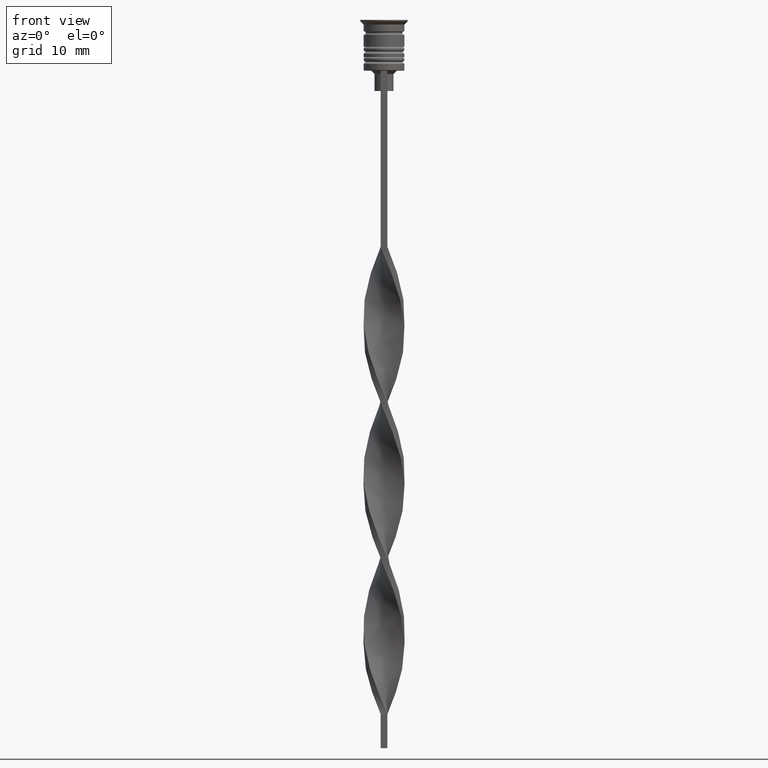
[diagram: clean part render]
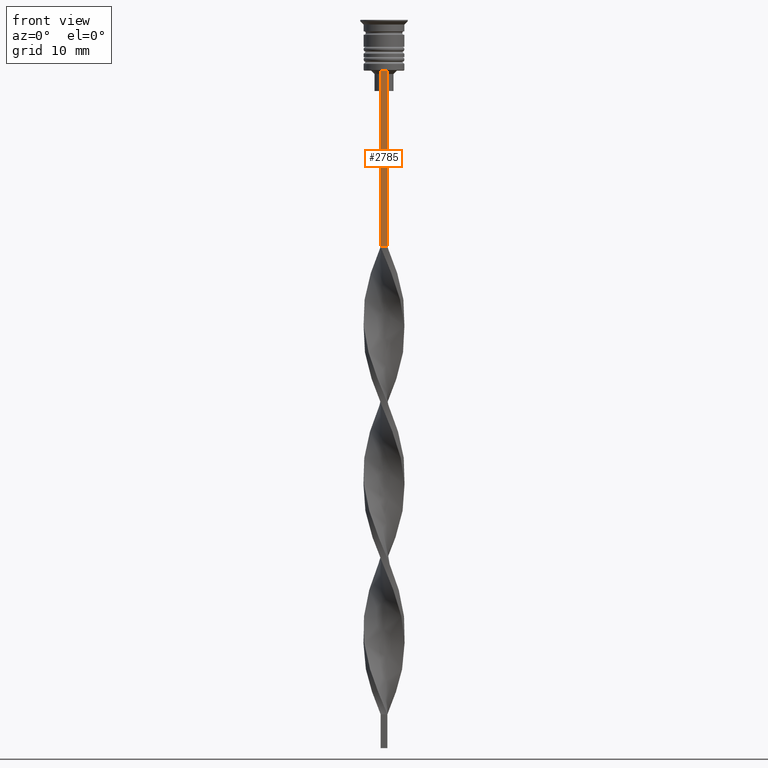
[diagram: same view with one face highlighted and labeled with its STEP entity id]
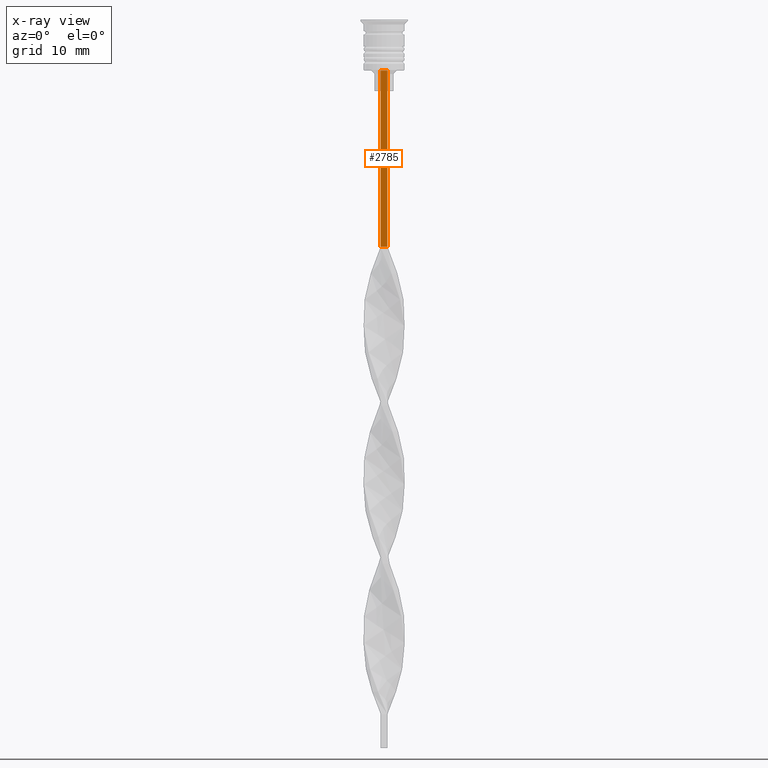
[diagram: x-ray of the same camera — body ghosted, the highlighted face saturated]
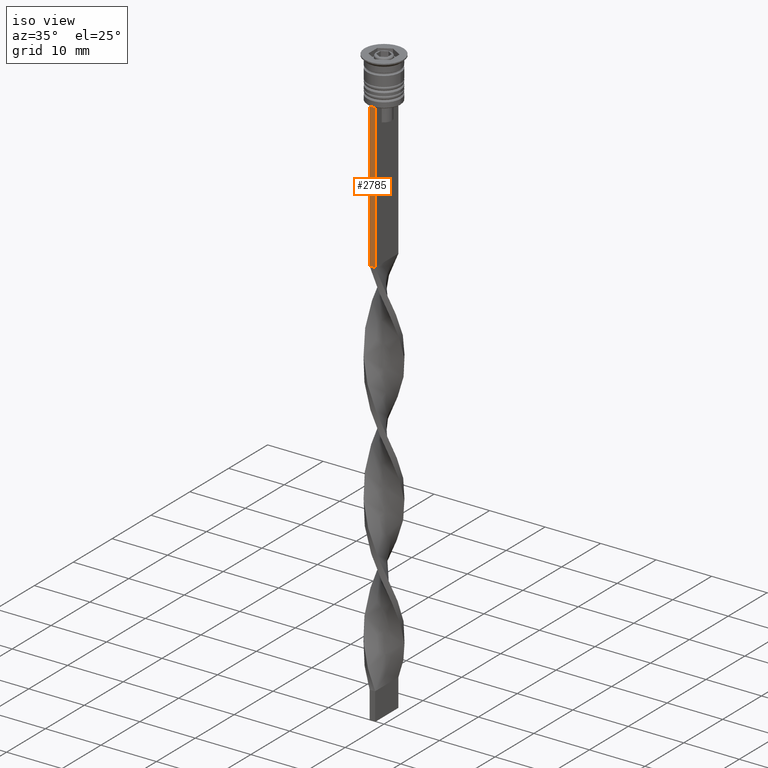
[diagram: same view with one face highlighted and labeled with its STEP entity id]
A machine part, front view. The second image highlights one B-rep face of the part: STEP entity #2785.
The next image is the same camera in x-ray: the body ghosted, the highlighted face saturated — about 0% of this face is hidden behind the body in this view.
A second angle (iso view) of the same face is appended — the face is thin or edge-on in the first view.
In plain terms, the highlighted planar face has unit normal (0, -1, -0).
Its self-contained STEP definition (entity closure, byte-faithful):
#53 = DIRECTION ( 'NONE',  ( 1.000000000000000000, 0.000000000000000000, 0.000000000000000000 ) ) ;
#106 = CARTESIAN_POINT ( 'NONE',  ( 0.4999999999999998890, -3.000000000000000000, -33.50000000000000000 ) ) ;
#121 = LINE ( 'NONE', #2462, #986 ) ;
#225 = CARTESIAN_POINT ( 'NONE',  ( 0.4999999999999998890, -3.000000000000000000, -1.417237469701779329 ) ) ;
#246 = VECTOR ( 'NONE', #1366, 1000.000000000000000 ) ;
#265 = ORIENTED_EDGE ( 'NONE', *, *, #2862, .F. ) ;
#280 = ORIENTED_EDGE ( 'NONE', *, *, #2994, .T. ) ;
#293 = CARTESIAN_POINT ( 'NONE',  ( -0.5000000000000001110, -3.000000000000000000, -7.500000000000000000 ) ) ;
#349 = EDGE_CURVE ( 'NONE', #486, #1769, #2129, .T. ) ;
#486 = VERTEX_POINT ( 'NONE', #106 ) ;
#498 = DIRECTION ( 'NONE',  ( 0.000000000000000000, 0.000000000000000000, -1.000000000000000000 ) ) ;
#754 = VECTOR ( 'NONE', #1876, 1000.000000000000000 ) ;
#889 = VERTEX_POINT ( 'NONE', #293 ) ;
#986 = VECTOR ( 'NONE', #2724, 1000.000000000000000 ) ;
#994 = PLANE ( 'NONE',  #1275 ) ;
#1100 = CARTESIAN_POINT ( 'NONE',  ( 0.4999999999999998890, -3.000000000000000000, -7.500000000000000000 ) ) ;
#1239 = VERTEX_POINT ( 'NONE', #3441 ) ;
#1275 = AXIS2_PLACEMENT_3D ( 'NONE', #225, #2307, #498 ) ;
#1291 = LINE ( 'NONE', #1100, #2445 ) ;
#1366 = DIRECTION ( 'NONE',  ( -1.000000000000000000, 0.000000000000000000, 0.000000000000000000 ) ) ;
#1763 = ORIENTED_EDGE ( 'NONE', *, *, #2428, .F. ) ;
#1769 = VERTEX_POINT ( 'NONE', #2672 ) ;
#1876 = DIRECTION ( 'NONE',  ( 0.000000000000000000, 0.000000000000000000, -1.000000000000000000 ) ) ;
#2129 = LINE ( 'NONE', #3191, #246 ) ;
#2180 = CARTESIAN_POINT ( 'NONE',  ( -0.5000000000000001110, -3.000000000000000000, -1.417237469701779329 ) ) ;
#2300 = ORIENTED_EDGE ( 'NONE', *, *, #349, .F. ) ;
#2307 = DIRECTION ( 'NONE',  ( 0.000000000000000000, -1.000000000000000000, -0.000000000000000000 ) ) ;
#2414 = LINE ( 'NONE', #2180, #754 ) ;
#2428 = EDGE_CURVE ( 'NONE', #1239, #486, #121, .T. ) ;
#2445 = VECTOR ( 'NONE', #53, 1000.000000000000000 ) ;
#2462 = CARTESIAN_POINT ( 'NONE',  ( 0.4999999999999998890, -3.000000000000000000, -1.417237469701779329 ) ) ;
#2520 = EDGE_LOOP ( 'NONE', ( #265, #280, #2300, #1763 ) ) ;
#2672 = CARTESIAN_POINT ( 'NONE',  ( -0.5000000000000001110, -3.000000000000000000, -33.50000000000000000 ) ) ;
#2724 = DIRECTION ( 'NONE',  ( 0.000000000000000000, 0.000000000000000000, -1.000000000000000000 ) ) ;
#2785 = ADVANCED_FACE ( 'NONE', ( #3100 ), #994, .T. ) ;
#2862 = EDGE_CURVE ( 'NONE', #889, #1239, #1291, .T. ) ;
#2994 = EDGE_CURVE ( 'NONE', #889, #1769, #2414, .T. ) ;
#3100 = FACE_OUTER_BOUND ( 'NONE', #2520, .T. ) ;
#3191 = CARTESIAN_POINT ( 'NONE',  ( 0.4999999999999998890, -3.000000000000000000, -33.50000000000000000 ) ) ;
#3441 = CARTESIAN_POINT ( 'NONE',  ( 0.4999999999999998890, -3.000000000000000000, -7.500000000000000000 ) ) ;